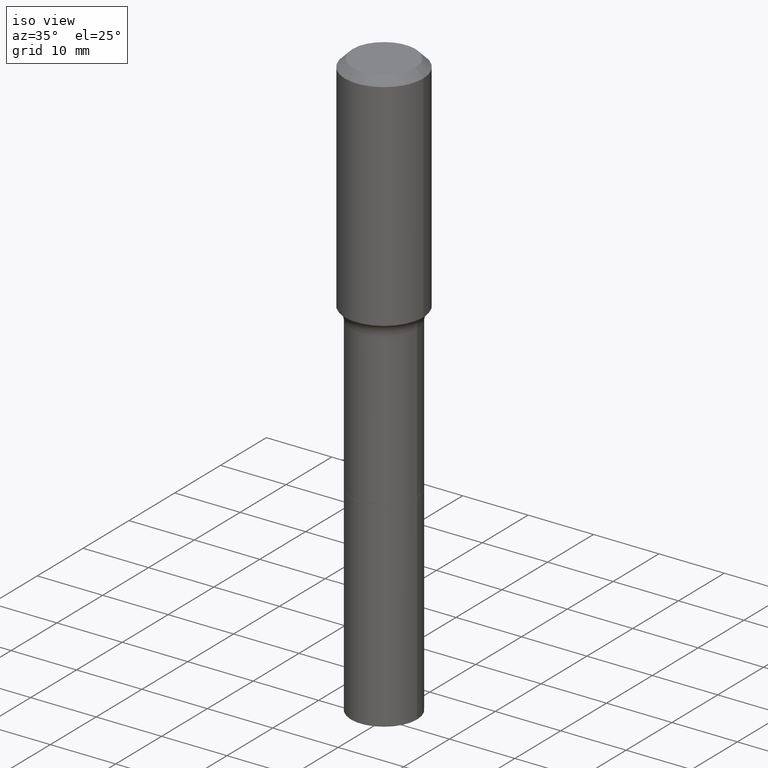
[diagram: clean part render]
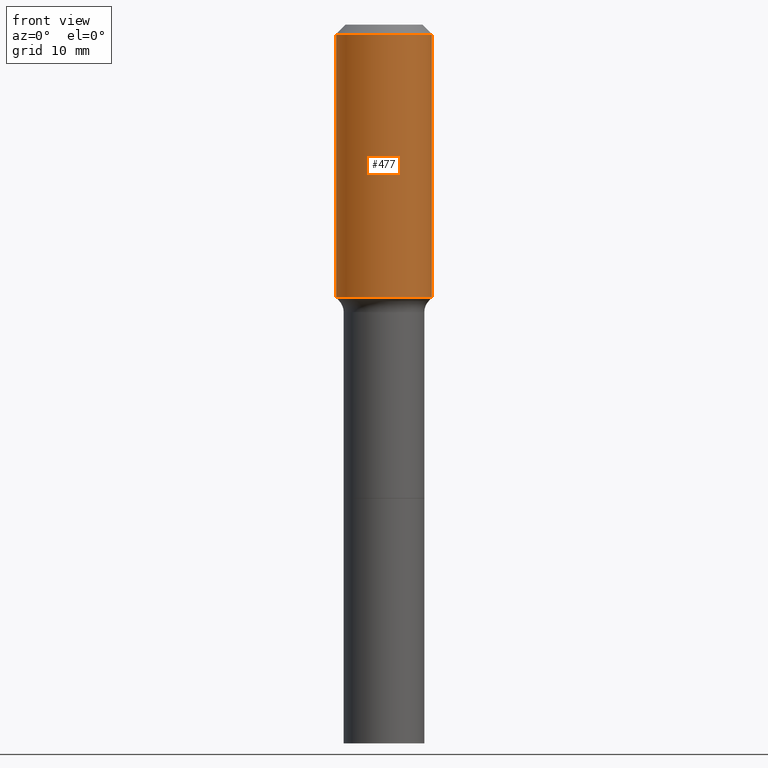
[diagram: tour spotlight — one face highlighted and labeled with its STEP entity id]
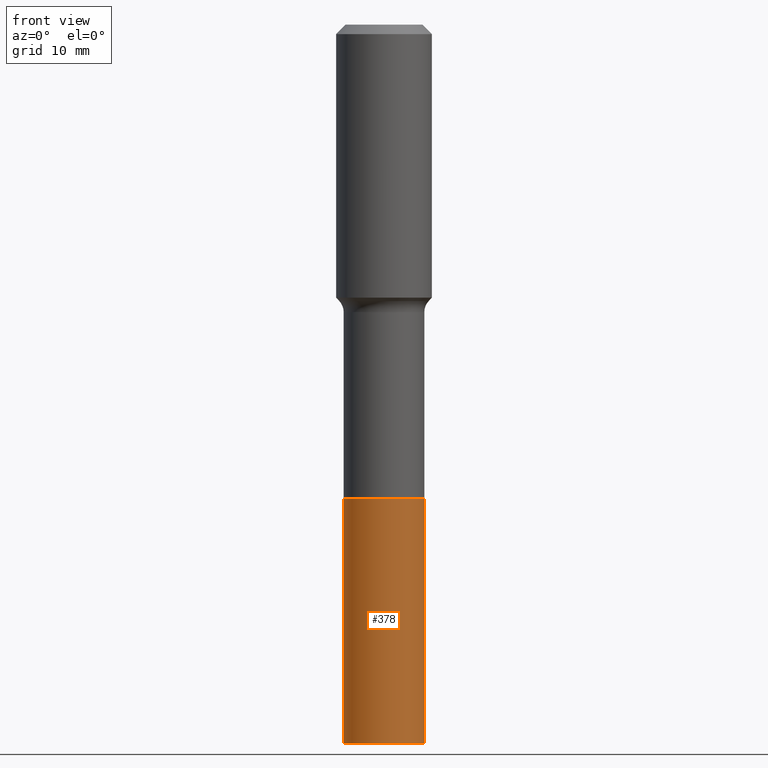
[diagram: tour spotlight — one face highlighted and labeled with its STEP entity id]
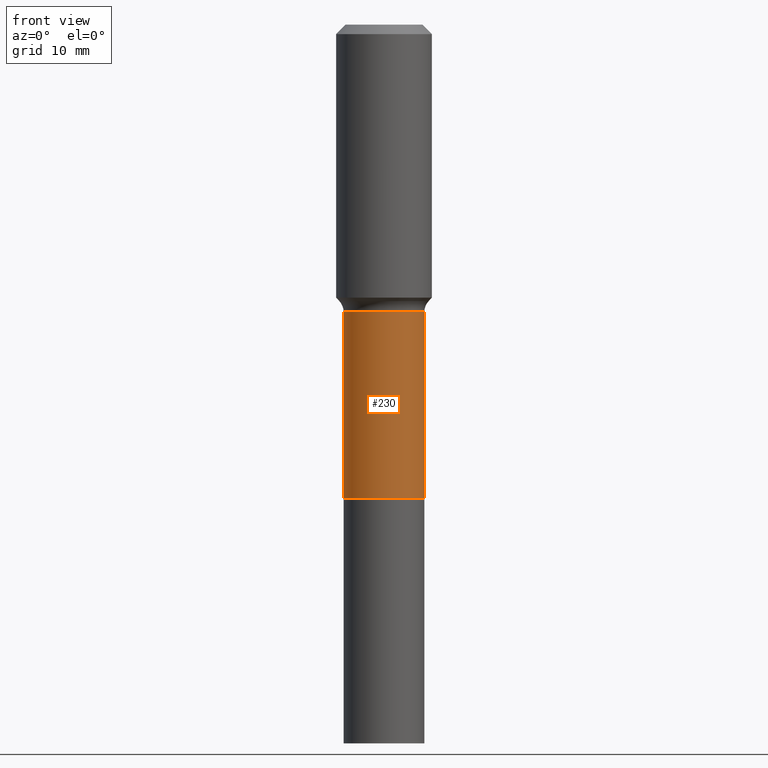
[diagram: tour spotlight — one face highlighted and labeled with its STEP entity id]
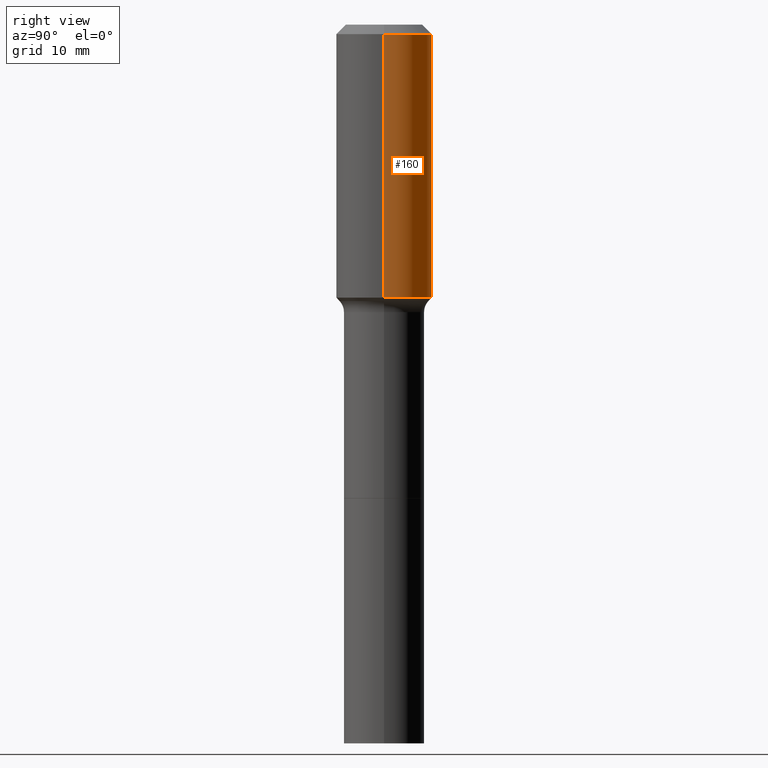
[diagram: tour spotlight — one face highlighted and labeled with its STEP entity id]
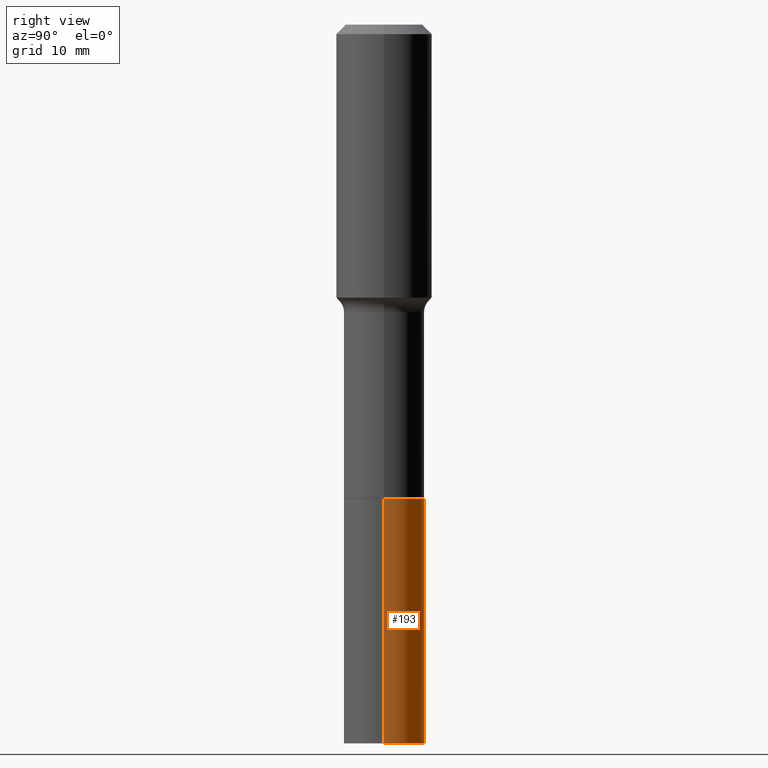
[diagram: tour spotlight — one face highlighted and labeled with its STEP entity id]
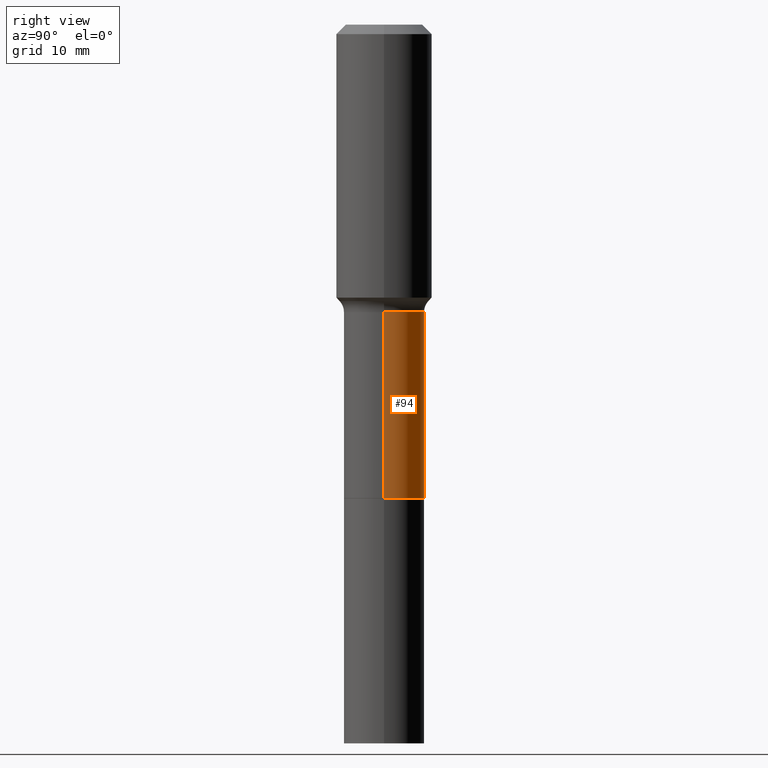
[diagram: tour spotlight — one face highlighted and labeled with its STEP entity id]
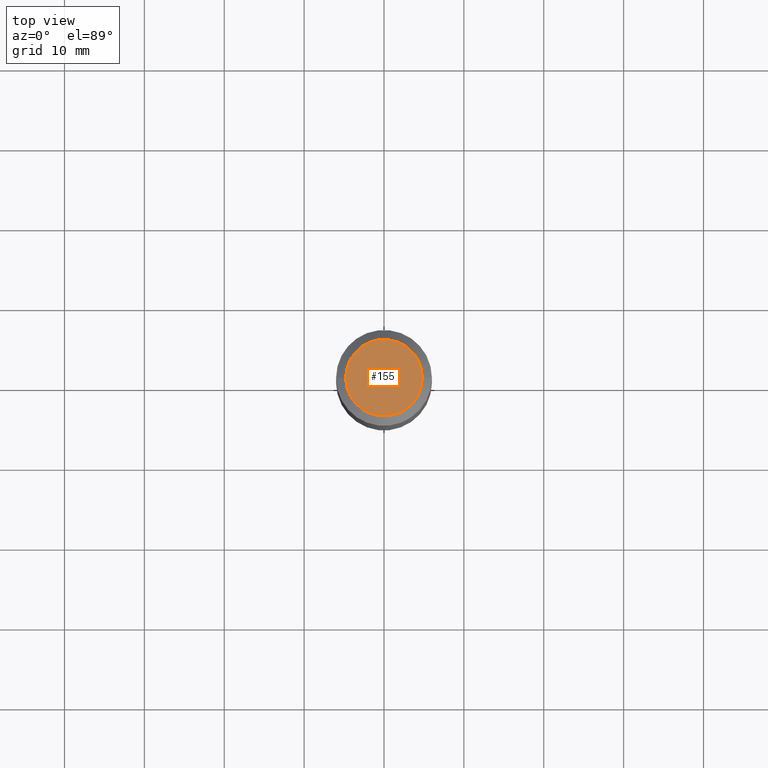
[diagram: tour spotlight — one face highlighted and labeled with its STEP entity id]
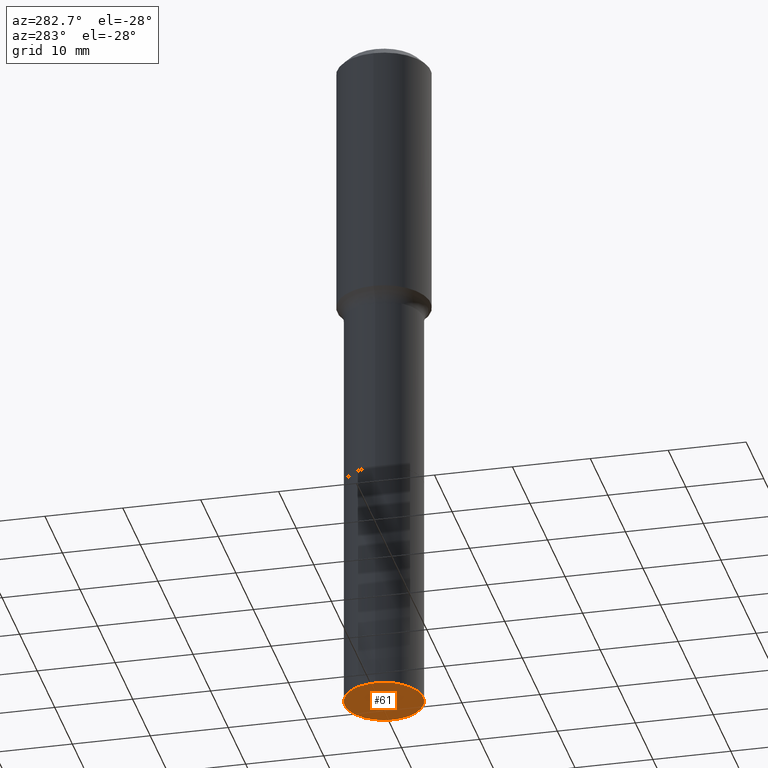
[diagram: tour spotlight — one face highlighted and labeled with its STEP entity id]
A machine part: a face-by-face anatomy tour. The part has 18 B-rep faces; the first image is the clean iso view, then the 8 largest visible faces are spotlighted one at a time (largest first), each with its STEP entity span.

Face 1 — front view, entity #477. In plain terms, the highlighted cylindrical surface (partial cylindrical patch) has radius 5.9995 mm, axis along (-0, 0, 1).
Definition (entity closure, byte-faithful):
#13 = DIRECTION ( 'NONE',  ( 1.000000000000000000, -6.982962677686266711E-15, 4.876176775795935793E-29 ) ) ;
#21 = CARTESIAN_POINT ( 'NONE',  ( -0.2362000000000000766, 1.678301941865357183E-15, -1.161852468318209177E-29 ) ) ;
#51 = CARTESIAN_POINT ( 'NONE',  ( 0.2361999999999999933, -1.814313362916447440E-15, -0.04724000000000028870 ) ) ;
#58 = ORIENTED_EDGE ( 'NONE', *, *, #456, .F. ) ;
#127 = CARTESIAN_POINT ( 'NONE',  ( 0.2362000000000000766, -1.649375784469496722E-15, 1.151752954443000368E-29 ) ) ;
#142 = CYLINDRICAL_SURFACE ( 'NONE', #463, 0.2362000000000000766 ) ;
#163 = DIRECTION ( 'NONE',  ( -2.445468806185136597E-29, 3.491481338843145583E-15, 1.000000000000000000 ) ) ;
#165 = EDGE_LOOP ( 'NONE', ( #58, #233, #517, #461 ) ) ;
#166 = VECTOR ( 'NONE', #332, 39.37007874015748143 ) ;
#170 = VERTEX_POINT ( 'NONE', #478 ) ;
#173 = EDGE_CURVE ( 'NONE', #445, #231, #380, .T. ) ;
#210 = CARTESIAN_POINT ( 'NONE',  ( 1.155239464041865682E-30, -1.649375784469512105E-16, -0.04724000000000028870 ) ) ;
#214 = DIRECTION ( 'NONE',  ( 1.000000000000000000, -6.982962677686266711E-15, 0.000000000000000000 ) ) ;
#231 = VERTEX_POINT ( 'NONE', #372 ) ;
#233 = ORIENTED_EDGE ( 'NONE', *, *, #173, .T. ) ;
#251 = CIRCLE ( 'NONE', #419, 0.2361999999999999933 ) ;
#263 = DIRECTION ( 'NONE',  ( -2.445468806185136877E-29, 3.491481338843145188E-15, 1.000000000000000000 ) ) ;
#279 = DIRECTION ( 'NONE',  ( -2.445468806185136597E-29, 3.491481338843145583E-15, 1.000000000000000000 ) ) ;
#285 = EDGE_CURVE ( 'NONE', #170, #323, #251, .T. ) ;
#290 = VECTOR ( 'NONE', #263, 39.37007874015748143 ) ;
#292 = CARTESIAN_POINT ( 'NONE',  ( 0.000000000000000000, 0.000000000000000000, 0.000000000000000000 ) ) ;
#323 = VERTEX_POINT ( 'NONE', #51 ) ;
#332 = DIRECTION ( 'NONE',  ( -2.445468806185136877E-29, 3.491481338843145188E-15, 1.000000000000000000 ) ) ;
#334 = FACE_OUTER_BOUND ( 'NONE', #165, .T. ) ;
#372 = CARTESIAN_POINT ( 'NONE',  ( 0.2362000000000001598, -6.347794390335182806E-15, -1.345680572195881330 ) ) ;
#377 = DIRECTION ( 'NONE',  ( -2.445468806185136597E-29, 3.491481338843145583E-15, 1.000000000000000000 ) ) ;
#380 = CIRCLE ( 'NONE', #389, 0.2362000000000001598 ) ;
#389 = AXIS2_PLACEMENT_3D ( 'NONE', #475, #279, #434 ) ;
#416 = EDGE_CURVE ( 'NONE', #231, #323, #485, .T. ) ;
#417 = LINE ( 'NONE', #21, #290 ) ;
#419 = AXIS2_PLACEMENT_3D ( 'NONE', #210, #163, #214 ) ;
#434 = DIRECTION ( 'NONE',  ( 1.000000000000000000, -6.982962677686268288E-15, 0.000000000000000000 ) ) ;
#445 = VERTEX_POINT ( 'NONE', #454 ) ;
#454 = CARTESIAN_POINT ( 'NONE',  ( -0.2362000000000001598, -3.020116664000327126E-15, -1.345680572195881330 ) ) ;
#456 = EDGE_CURVE ( 'NONE', #445, #170, #417, .T. ) ;
#461 = ORIENTED_EDGE ( 'NONE', *, *, #285, .F. ) ;
#463 = AXIS2_PLACEMENT_3D ( 'NONE', #292, #377, #13 ) ;
#475 = CARTESIAN_POINT ( 'NONE',  ( 3.290819862394392859E-29, -4.698418605865685492E-15, -1.345680572195881330 ) ) ;
#477 = ADVANCED_FACE ( 'NONE', ( #334 ), #142, .T. ) ;
#478 = CARTESIAN_POINT ( 'NONE',  ( -0.2361999999999999933, -7.533761502909610204E-16, -0.04724000000000028870 ) ) ;
#485 = LINE ( 'NONE', #127, #166 ) ;
#517 = ORIENTED_EDGE ( 'NONE', *, *, #416, .T. ) ;

Face 2 — front view, entity #378. In plain terms, the highlighted cylindrical surface (partial cylindrical patch) has radius 5.0495 mm, axis along (-0, 0, 1).
Definition (entity closure, byte-faithful):
#17 = CARTESIAN_POINT ( 'NONE',  ( -0.1988000000000000045, -6.737605930570474412E-15, -2.334299999999999820 ) ) ;
#20 = EDGE_CURVE ( 'NONE', #464, #327, #338, .T. ) ;
#29 = ORIENTED_EDGE ( 'NONE', *, *, #298, .F. ) ;
#32 = FACE_OUTER_BOUND ( 'NONE', #102, .T. ) ;
#73 = VERTEX_POINT ( 'NONE', #271 ) ;
#74 = DIRECTION ( 'NONE',  ( -2.445468806185136877E-29, 3.491481338843145188E-15, 1.000000000000000000 ) ) ;
#91 = DIRECTION ( 'NONE',  ( -2.445468806185136597E-29, 3.491481338843145583E-15, 1.000000000000000000 ) ) ;
#101 = CARTESIAN_POINT ( 'NONE',  ( 5.708457834277963987E-29, -8.150164889261554205E-15, -2.334299999999999820 ) ) ;
#102 = EDGE_LOOP ( 'NONE', ( #29, #283, #443, #476 ) ) ;
#134 = EDGE_CURVE ( 'NONE', #327, #73, #473, .T. ) ;
#143 = AXIS2_PLACEMENT_3D ( 'NONE', #400, #190, #352 ) ;
#145 = CARTESIAN_POINT ( 'NONE',  ( 8.665029620955794069E-29, -1.237136582792291707E-14, -3.543299999999999894 ) ) ;
#154 = CARTESIAN_POINT ( 'NONE',  ( 0.1988000000000000045, -9.538377869585582753E-15, -2.334299999999999820 ) ) ;
#184 = EDGE_CURVE ( 'NONE', #321, #73, #302, .T. ) ;
#187 = CYLINDRICAL_SURFACE ( 'NONE', #494, 0.1988000000000000045 ) ;
#190 = DIRECTION ( 'NONE',  ( -2.445468806185136597E-29, 3.491481338843145583E-15, 1.000000000000000000 ) ) ;
#209 = LINE ( 'NONE', #17, #266 ) ;
#228 = DIRECTION ( 'NONE',  ( -2.445468806185136597E-29, 3.491481338843145583E-15, 1.000000000000000000 ) ) ;
#232 = CARTESIAN_POINT ( 'NONE',  ( -0.1988000000000000045, -8.848206399901156635E-15, -3.543299999999999894 ) ) ;
#254 = DIRECTION ( 'NONE',  ( 1.000000000000000000, -6.982962677686261977E-15, 0.000000000000000000 ) ) ;
#266 = VECTOR ( 'NONE', #324, 39.37007874015748143 ) ;
#271 = CARTESIAN_POINT ( 'NONE',  ( 0.1988000000000000045, -9.538377869585582753E-15, -2.334299999999999820 ) ) ;
#283 = ORIENTED_EDGE ( 'NONE', *, *, #20, .T. ) ;
#287 = CARTESIAN_POINT ( 'NONE',  ( -0.1988000000000000045, -8.848206399901156635E-15, -2.334299999999999820 ) ) ;
#298 = EDGE_CURVE ( 'NONE', #464, #321, #209, .T. ) ;
#302 = CIRCLE ( 'NONE', #143, 0.1988000000000000045 ) ;
#312 = DIRECTION ( 'NONE',  ( 1.000000000000000000, -6.982962677686261977E-15, 0.000000000000000000 ) ) ;
#321 = VERTEX_POINT ( 'NONE', #287 ) ;
#324 = DIRECTION ( 'NONE',  ( -2.445468806185136877E-29, 3.491481338843145188E-15, 1.000000000000000000 ) ) ;
#325 = AXIS2_PLACEMENT_3D ( 'NONE', #145, #91, #254 ) ;
#327 = VERTEX_POINT ( 'NONE', #483 ) ;
#338 = CIRCLE ( 'NONE', #325, 0.1988000000000000045 ) ;
#350 = VECTOR ( 'NONE', #74, 39.37007874015748143 ) ;
#352 = DIRECTION ( 'NONE',  ( 1.000000000000000000, -6.982962677686261977E-15, 0.000000000000000000 ) ) ;
#378 = ADVANCED_FACE ( 'NONE', ( #32 ), #187, .T. ) ;
#400 = CARTESIAN_POINT ( 'NONE',  ( 5.708457834277963987E-29, -8.150164889261554205E-15, -2.334299999999999820 ) ) ;
#443 = ORIENTED_EDGE ( 'NONE', *, *, #134, .T. ) ;
#464 = VERTEX_POINT ( 'NONE', #232 ) ;
#473 = LINE ( 'NONE', #154, #350 ) ;
#476 = ORIENTED_EDGE ( 'NONE', *, *, #184, .F. ) ;
#483 = CARTESIAN_POINT ( 'NONE',  ( 0.1988000000000000045, -1.375957880824694562E-14, -3.543299999999999894 ) ) ;
#494 = AXIS2_PLACEMENT_3D ( 'NONE', #101, #228, #312 ) ;

Face 3 — front view, entity #230. In plain terms, the highlighted cylindrical surface (partial cylindrical patch) has radius 5.0495 mm, axis along (-0, 0, 1).
Definition (entity closure, byte-faithful):
#3 = CYLINDRICAL_SURFACE ( 'NONE', #182, 0.1988000000000000045 ) ;
#4 = EDGE_LOOP ( 'NONE', ( #105, #435, #349, #185 ) ) ;
#9 = EDGE_CURVE ( 'NONE', #410, #212, #164, .T. ) ;
#12 = CARTESIAN_POINT ( 'NONE',  ( 3.465962939006193759E-29, -4.948476501542390442E-15, -1.417300000000000004 ) ) ;
#57 = CARTESIAN_POINT ( 'NONE',  ( 0.1988000000000000045, -1.388212980324029928E-15, 9.693839430282320098E-30 ) ) ;
#70 = VECTOR ( 'NONE', #297, 39.37007874015748143 ) ;
#85 = DIRECTION ( 'NONE',  ( -2.445468806185136597E-29, 3.491481338843145583E-15, 1.000000000000000000 ) ) ;
#97 = FACE_OUTER_BOUND ( 'NONE', #4, .T. ) ;
#105 = ORIENTED_EDGE ( 'NONE', *, *, #255, .F. ) ;
#124 = LINE ( 'NONE', #404, #513 ) ;
#139 = CARTESIAN_POINT ( 'NONE',  ( 0.1987999999999999490, -6.336689481866418990E-15, -1.417300000000000004 ) ) ;
#164 = CIRCLE ( 'NONE', #317, 0.1988000000000000322 ) ;
#172 = LINE ( 'NONE', #57, #70 ) ;
#182 = AXIS2_PLACEMENT_3D ( 'NONE', #412, #364, #341 ) ;
#185 = ORIENTED_EDGE ( 'NONE', *, *, #248, .F. ) ;
#212 = VERTEX_POINT ( 'NONE', #291 ) ;
#230 = ADVANCED_FACE ( 'NONE', ( #97 ), #3, .T. ) ;
#248 = EDGE_CURVE ( 'NONE', #252, #265, #273, .T. ) ;
#250 = CARTESIAN_POINT ( 'NONE',  ( -0.1987999999999999490, -5.135888866376182173E-15, -1.417300000000000004 ) ) ;
#252 = VERTEX_POINT ( 'NONE', #250 ) ;
#255 = EDGE_CURVE ( 'NONE', #410, #252, #124, .T. ) ;
#265 = VERTEX_POINT ( 'NONE', #139 ) ;
#273 = CIRCLE ( 'NONE', #282, 0.1987999999999999490 ) ;
#282 = AXIS2_PLACEMENT_3D ( 'NONE', #12, #85, #496 ) ;
#289 = DIRECTION ( 'NONE',  ( 1.000000000000000000, -6.982962677686265922E-15, 0.000000000000000000 ) ) ;
#291 = CARTESIAN_POINT ( 'NONE',  ( 0.1988000000000000322, -9.536632128916162038E-15, -2.333799999999999653 ) ) ;
#293 = CARTESIAN_POINT ( 'NONE',  ( 5.707235099874871185E-29, -8.148419148592131913E-15, -2.333799999999999653 ) ) ;
#297 = DIRECTION ( 'NONE',  ( -2.445468806185136877E-29, 3.491481338843145188E-15, 1.000000000000000000 ) ) ;
#317 = AXIS2_PLACEMENT_3D ( 'NONE', #293, #498, #289 ) ;
#328 = CARTESIAN_POINT ( 'NONE',  ( -0.1988000000000000322, -5.135888866376181385E-15, -2.333799999999999653 ) ) ;
#341 = DIRECTION ( 'NONE',  ( 1.000000000000000000, -6.982962677686266711E-15, 4.876176775795935793E-29 ) ) ;
#349 = ORIENTED_EDGE ( 'NONE', *, *, #518, .T. ) ;
#364 = DIRECTION ( 'NONE',  ( -2.445468806185136597E-29, 3.491481338843145583E-15, 1.000000000000000000 ) ) ;
#404 = CARTESIAN_POINT ( 'NONE',  ( -0.1988000000000000045, 1.412558958691079201E-15, -9.778842959426753228E-30 ) ) ;
#410 = VERTEX_POINT ( 'NONE', #328 ) ;
#412 = CARTESIAN_POINT ( 'NONE',  ( 0.000000000000000000, 0.000000000000000000, 0.000000000000000000 ) ) ;
#435 = ORIENTED_EDGE ( 'NONE', *, *, #9, .T. ) ;
#452 = DIRECTION ( 'NONE',  ( -2.445468806185136877E-29, 3.491481338843145188E-15, 1.000000000000000000 ) ) ;
#496 = DIRECTION ( 'NONE',  ( 1.000000000000000000, -6.982962677686264344E-15, 0.000000000000000000 ) ) ;
#498 = DIRECTION ( 'NONE',  ( -2.445468806185136597E-29, 3.491481338843145583E-15, 1.000000000000000000 ) ) ;
#513 = VECTOR ( 'NONE', #452, 39.37007874015748143 ) ;
#518 = EDGE_CURVE ( 'NONE', #212, #265, #172, .T. ) ;

Face 4 — right view, entity #160. In plain terms, the highlighted cylindrical surface (partial cylindrical patch) has radius 5.9995 mm, axis along (-0, 0, 1).
Definition (entity closure, byte-faithful):
#16 = ORIENTED_EDGE ( 'NONE', *, *, #456, .T. ) ;
#18 = AXIS2_PLACEMENT_3D ( 'NONE', #361, #236, #204 ) ;
#21 = CARTESIAN_POINT ( 'NONE',  ( -0.2362000000000000766, 1.678301941865357183E-15, -1.161852468318209177E-29 ) ) ;
#38 = CYLINDRICAL_SURFACE ( 'NONE', #343, 0.2362000000000000766 ) ;
#51 = CARTESIAN_POINT ( 'NONE',  ( 0.2361999999999999933, -1.814313362916447440E-15, -0.04724000000000028870 ) ) ;
#77 = EDGE_CURVE ( 'NONE', #231, #445, #241, .T. ) ;
#78 = DIRECTION ( 'NONE',  ( -2.445468806185136597E-29, 3.491481338843145583E-15, 1.000000000000000000 ) ) ;
#104 = CIRCLE ( 'NONE', #135, 0.2361999999999999933 ) ;
#107 = EDGE_CURVE ( 'NONE', #323, #170, #104, .T. ) ;
#117 = DIRECTION ( 'NONE',  ( 1.000000000000000000, -6.982962677686266711E-15, 4.876176775795935793E-29 ) ) ;
#127 = CARTESIAN_POINT ( 'NONE',  ( 0.2362000000000000766, -1.649375784469496722E-15, 1.151752954443000368E-29 ) ) ;
#135 = AXIS2_PLACEMENT_3D ( 'NONE', #510, #509, #275 ) ;
#147 = EDGE_LOOP ( 'NONE', ( #162, #16, #217, #418 ) ) ;
#160 = ADVANCED_FACE ( 'NONE', ( #392 ), #38, .T. ) ;
#162 = ORIENTED_EDGE ( 'NONE', *, *, #77, .T. ) ;
#166 = VECTOR ( 'NONE', #332, 39.37007874015748143 ) ;
#170 = VERTEX_POINT ( 'NONE', #478 ) ;
#204 = DIRECTION ( 'NONE',  ( 1.000000000000000000, -6.982962677686268288E-15, 0.000000000000000000 ) ) ;
#217 = ORIENTED_EDGE ( 'NONE', *, *, #107, .F. ) ;
#231 = VERTEX_POINT ( 'NONE', #372 ) ;
#236 = DIRECTION ( 'NONE',  ( -2.445468806185136597E-29, 3.491481338843145583E-15, 1.000000000000000000 ) ) ;
#241 = CIRCLE ( 'NONE', #18, 0.2362000000000001598 ) ;
#263 = DIRECTION ( 'NONE',  ( -2.445468806185136877E-29, 3.491481338843145188E-15, 1.000000000000000000 ) ) ;
#275 = DIRECTION ( 'NONE',  ( 1.000000000000000000, -6.982962677686266711E-15, 0.000000000000000000 ) ) ;
#290 = VECTOR ( 'NONE', #263, 39.37007874015748143 ) ;
#322 = CARTESIAN_POINT ( 'NONE',  ( 0.000000000000000000, 0.000000000000000000, 0.000000000000000000 ) ) ;
#323 = VERTEX_POINT ( 'NONE', #51 ) ;
#332 = DIRECTION ( 'NONE',  ( -2.445468806185136877E-29, 3.491481338843145188E-15, 1.000000000000000000 ) ) ;
#343 = AXIS2_PLACEMENT_3D ( 'NONE', #322, #78, #117 ) ;
#361 = CARTESIAN_POINT ( 'NONE',  ( 3.290819862394392859E-29, -4.698418605865685492E-15, -1.345680572195881330 ) ) ;
#372 = CARTESIAN_POINT ( 'NONE',  ( 0.2362000000000001598, -6.347794390335182806E-15, -1.345680572195881330 ) ) ;
#392 = FACE_OUTER_BOUND ( 'NONE', #147, .T. ) ;
#416 = EDGE_CURVE ( 'NONE', #231, #323, #485, .T. ) ;
#417 = LINE ( 'NONE', #21, #290 ) ;
#418 = ORIENTED_EDGE ( 'NONE', *, *, #416, .F. ) ;
#445 = VERTEX_POINT ( 'NONE', #454 ) ;
#454 = CARTESIAN_POINT ( 'NONE',  ( -0.2362000000000001598, -3.020116664000327126E-15, -1.345680572195881330 ) ) ;
#456 = EDGE_CURVE ( 'NONE', #445, #170, #417, .T. ) ;
#478 = CARTESIAN_POINT ( 'NONE',  ( -0.2361999999999999933, -7.533761502909610204E-16, -0.04724000000000028870 ) ) ;
#485 = LINE ( 'NONE', #127, #166 ) ;
#509 = DIRECTION ( 'NONE',  ( -2.445468806185136597E-29, 3.491481338843145583E-15, 1.000000000000000000 ) ) ;
#510 = CARTESIAN_POINT ( 'NONE',  ( 1.155239464041865682E-30, -1.649375784469512105E-16, -0.04724000000000028870 ) ) ;

Face 5 — right view, entity #193. In plain terms, the highlighted cylindrical surface (partial cylindrical patch) has radius 5.0495 mm, axis along (-0, 0, 1).
Definition (entity closure, byte-faithful):
#17 = CARTESIAN_POINT ( 'NONE',  ( -0.1988000000000000045, -6.737605930570474412E-15, -2.334299999999999820 ) ) ;
#36 = CIRCLE ( 'NONE', #221, 0.1988000000000000045 ) ;
#43 = EDGE_CURVE ( 'NONE', #73, #321, #36, .T. ) ;
#73 = VERTEX_POINT ( 'NONE', #271 ) ;
#74 = DIRECTION ( 'NONE',  ( -2.445468806185136877E-29, 3.491481338843145188E-15, 1.000000000000000000 ) ) ;
#93 = CYLINDRICAL_SURFACE ( 'NONE', #112, 0.1988000000000000045 ) ;
#95 = CARTESIAN_POINT ( 'NONE',  ( 8.665029620955794069E-29, -1.237136582792291707E-14, -3.543299999999999894 ) ) ;
#112 = AXIS2_PLACEMENT_3D ( 'NONE', #295, #366, #402 ) ;
#125 = ORIENTED_EDGE ( 'NONE', *, *, #503, .T. ) ;
#129 = DIRECTION ( 'NONE',  ( -2.445468806185136597E-29, 3.491481338843145583E-15, 1.000000000000000000 ) ) ;
#134 = EDGE_CURVE ( 'NONE', #327, #73, #473, .T. ) ;
#154 = CARTESIAN_POINT ( 'NONE',  ( 0.1988000000000000045, -9.538377869585582753E-15, -2.334299999999999820 ) ) ;
#156 = DIRECTION ( 'NONE',  ( -2.445468806185136597E-29, 3.491481338843145583E-15, 1.000000000000000000 ) ) ;
#178 = DIRECTION ( 'NONE',  ( 1.000000000000000000, -6.982962677686261977E-15, 0.000000000000000000 ) ) ;
#188 = ORIENTED_EDGE ( 'NONE', *, *, #43, .F. ) ;
#192 = DIRECTION ( 'NONE',  ( 1.000000000000000000, -6.982962677686261977E-15, 0.000000000000000000 ) ) ;
#193 = ADVANCED_FACE ( 'NONE', ( #492 ), #93, .T. ) ;
#209 = LINE ( 'NONE', #17, #266 ) ;
#221 = AXIS2_PLACEMENT_3D ( 'NONE', #470, #156, #192 ) ;
#232 = CARTESIAN_POINT ( 'NONE',  ( -0.1988000000000000045, -8.848206399901156635E-15, -3.543299999999999894 ) ) ;
#266 = VECTOR ( 'NONE', #324, 39.37007874015748143 ) ;
#271 = CARTESIAN_POINT ( 'NONE',  ( 0.1988000000000000045, -9.538377869585582753E-15, -2.334299999999999820 ) ) ;
#287 = CARTESIAN_POINT ( 'NONE',  ( -0.1988000000000000045, -8.848206399901156635E-15, -2.334299999999999820 ) ) ;
#295 = CARTESIAN_POINT ( 'NONE',  ( 5.708457834277963987E-29, -8.150164889261554205E-15, -2.334299999999999820 ) ) ;
#298 = EDGE_CURVE ( 'NONE', #464, #321, #209, .T. ) ;
#321 = VERTEX_POINT ( 'NONE', #287 ) ;
#324 = DIRECTION ( 'NONE',  ( -2.445468806185136877E-29, 3.491481338843145188E-15, 1.000000000000000000 ) ) ;
#327 = VERTEX_POINT ( 'NONE', #483 ) ;
#344 = AXIS2_PLACEMENT_3D ( 'NONE', #95, #129, #178 ) ;
#350 = VECTOR ( 'NONE', #74, 39.37007874015748143 ) ;
#366 = DIRECTION ( 'NONE',  ( -2.445468806185136597E-29, 3.491481338843145583E-15, 1.000000000000000000 ) ) ;
#395 = ORIENTED_EDGE ( 'NONE', *, *, #134, .F. ) ;
#397 = CIRCLE ( 'NONE', #344, 0.1988000000000000045 ) ;
#402 = DIRECTION ( 'NONE',  ( 1.000000000000000000, -6.982962677686261977E-15, 0.000000000000000000 ) ) ;
#424 = ORIENTED_EDGE ( 'NONE', *, *, #298, .T. ) ;
#464 = VERTEX_POINT ( 'NONE', #232 ) ;
#470 = CARTESIAN_POINT ( 'NONE',  ( 5.708457834277963987E-29, -8.150164889261554205E-15, -2.334299999999999820 ) ) ;
#473 = LINE ( 'NONE', #154, #350 ) ;
#483 = CARTESIAN_POINT ( 'NONE',  ( 0.1988000000000000045, -1.375957880824694562E-14, -3.543299999999999894 ) ) ;
#492 = FACE_OUTER_BOUND ( 'NONE', #504, .T. ) ;
#503 = EDGE_CURVE ( 'NONE', #327, #464, #397, .T. ) ;
#504 = EDGE_LOOP ( 'NONE', ( #125, #424, #188, #395 ) ) ;

Face 6 — right view, entity #94. In plain terms, the highlighted cylindrical surface (partial cylindrical patch) has radius 5.0495 mm, axis along (-0, 0, 1).
Definition (entity closure, byte-faithful):
#6 = AXIS2_PLACEMENT_3D ( 'NONE', #491, #92, #411 ) ;
#40 = CYLINDRICAL_SURFACE ( 'NONE', #189, 0.1988000000000000045 ) ;
#57 = CARTESIAN_POINT ( 'NONE',  ( 0.1988000000000000045, -1.388212980324029928E-15, 9.693839430282320098E-30 ) ) ;
#70 = VECTOR ( 'NONE', #297, 39.37007874015748143 ) ;
#79 = CARTESIAN_POINT ( 'NONE',  ( 3.465962939006193759E-29, -4.948476501542390442E-15, -1.417300000000000004 ) ) ;
#92 = DIRECTION ( 'NONE',  ( -2.445468806185136597E-29, 3.491481338843145583E-15, 1.000000000000000000 ) ) ;
#94 = ADVANCED_FACE ( 'NONE', ( #467 ), #40, .T. ) ;
#124 = LINE ( 'NONE', #404, #513 ) ;
#138 = ORIENTED_EDGE ( 'NONE', *, *, #180, .F. ) ;
#139 = CARTESIAN_POINT ( 'NONE',  ( 0.1987999999999999490, -6.336689481866418990E-15, -1.417300000000000004 ) ) ;
#172 = LINE ( 'NONE', #57, #70 ) ;
#180 = EDGE_CURVE ( 'NONE', #265, #252, #234, .T. ) ;
#189 = AXIS2_PLACEMENT_3D ( 'NONE', #515, #431, #427 ) ;
#212 = VERTEX_POINT ( 'NONE', #291 ) ;
#226 = AXIS2_PLACEMENT_3D ( 'NONE', #79, #281, #239 ) ;
#234 = CIRCLE ( 'NONE', #226, 0.1987999999999999490 ) ;
#239 = DIRECTION ( 'NONE',  ( 1.000000000000000000, -6.982962677686264344E-15, 0.000000000000000000 ) ) ;
#250 = CARTESIAN_POINT ( 'NONE',  ( -0.1987999999999999490, -5.135888866376182173E-15, -1.417300000000000004 ) ) ;
#252 = VERTEX_POINT ( 'NONE', #250 ) ;
#255 = EDGE_CURVE ( 'NONE', #410, #252, #124, .T. ) ;
#265 = VERTEX_POINT ( 'NONE', #139 ) ;
#281 = DIRECTION ( 'NONE',  ( -2.445468806185136597E-29, 3.491481338843145583E-15, 1.000000000000000000 ) ) ;
#291 = CARTESIAN_POINT ( 'NONE',  ( 0.1988000000000000322, -9.536632128916162038E-15, -2.333799999999999653 ) ) ;
#297 = DIRECTION ( 'NONE',  ( -2.445468806185136877E-29, 3.491481338843145188E-15, 1.000000000000000000 ) ) ;
#307 = ORIENTED_EDGE ( 'NONE', *, *, #518, .F. ) ;
#328 = CARTESIAN_POINT ( 'NONE',  ( -0.1988000000000000322, -5.135888866376181385E-15, -2.333799999999999653 ) ) ;
#347 = EDGE_LOOP ( 'NONE', ( #490, #365, #138, #307 ) ) ;
#365 = ORIENTED_EDGE ( 'NONE', *, *, #255, .T. ) ;
#381 = CIRCLE ( 'NONE', #6, 0.1988000000000000322 ) ;
#404 = CARTESIAN_POINT ( 'NONE',  ( -0.1988000000000000045, 1.412558958691079201E-15, -9.778842959426753228E-30 ) ) ;
#410 = VERTEX_POINT ( 'NONE', #328 ) ;
#411 = DIRECTION ( 'NONE',  ( 1.000000000000000000, -6.982962677686265922E-15, 0.000000000000000000 ) ) ;
#427 = DIRECTION ( 'NONE',  ( 1.000000000000000000, -6.982962677686266711E-15, 4.876176775795935793E-29 ) ) ;
#431 = DIRECTION ( 'NONE',  ( -2.445468806185136597E-29, 3.491481338843145583E-15, 1.000000000000000000 ) ) ;
#439 = EDGE_CURVE ( 'NONE', #212, #410, #381, .T. ) ;
#452 = DIRECTION ( 'NONE',  ( -2.445468806185136877E-29, 3.491481338843145188E-15, 1.000000000000000000 ) ) ;
#467 = FACE_OUTER_BOUND ( 'NONE', #347, .T. ) ;
#490 = ORIENTED_EDGE ( 'NONE', *, *, #439, .T. ) ;
#491 = CARTESIAN_POINT ( 'NONE',  ( 5.707235099874871185E-29, -8.148419148592131913E-15, -2.333799999999999653 ) ) ;
#513 = VECTOR ( 'NONE', #452, 39.37007874015748143 ) ;
#515 = CARTESIAN_POINT ( 'NONE',  ( 0.000000000000000000, 0.000000000000000000, 0.000000000000000000 ) ) ;
#518 = EDGE_CURVE ( 'NONE', #212, #265, #172, .T. ) ;

Face 7 — top view, entity #155. In plain terms, the highlighted planar face has unit normal (0, -0, -1).
Definition (entity closure, byte-faithful):
#45 = VERTEX_POINT ( 'NONE', #111 ) ;
#55 = EDGE_LOOP ( 'NONE', ( #362, #382 ) ) ;
#111 = CARTESIAN_POINT ( 'NONE',  ( 0.1889600000000000168, -1.540873453589747738E-15, 3.855188123725863225E-18 ) ) ;
#131 = CARTESIAN_POINT ( 'NONE',  ( -0.1889600000000000168, 1.401969416799070942E-15, 3.855188123706346622E-18 ) ) ;
#152 = FACE_OUTER_BOUND ( 'NONE', #55, .T. ) ;
#155 = ADVANCED_FACE ( 'NONE', ( #152 ), #511, .F. ) ;
#157 = CIRCLE ( 'NONE', #211, 0.1889600000000000168 ) ;
#168 = DIRECTION ( 'NONE',  ( 1.000000000000000000, -6.982962677686266711E-15, 4.876185090822587894E-29 ) ) ;
#196 = DIRECTION ( 'NONE',  ( 2.438088387897960049E-29, -3.491481338843145188E-15, -1.000000000000000000 ) ) ;
#208 = EDGE_CURVE ( 'NONE', #45, #310, #157, .T. ) ;
#211 = AXIS2_PLACEMENT_3D ( 'NONE', #489, #455, #168 ) ;
#244 = DIRECTION ( 'NONE',  ( -1.000000000000000000, 6.982962677686265922E-15, -4.876176775795935793E-29 ) ) ;
#310 = VERTEX_POINT ( 'NONE', #131 ) ;
#320 = CARTESIAN_POINT ( 'NONE',  ( -4.713871149261273121E-47, 6.730158695841826722E-33, 1.927594061857931128E-18 ) ) ;
#345 = DIRECTION ( 'NONE',  ( -2.445468806185136597E-29, 3.491481338843145583E-15, 1.000000000000000000 ) ) ;
#362 = ORIENTED_EDGE ( 'NONE', *, *, #373, .T. ) ;
#373 = EDGE_CURVE ( 'NONE', #310, #45, #481, .T. ) ;
#382 = ORIENTED_EDGE ( 'NONE', *, *, #208, .T. ) ;
#420 = AXIS2_PLACEMENT_3D ( 'NONE', #500, #345, #508 ) ;
#455 = DIRECTION ( 'NONE',  ( -2.445468806185136597E-29, 3.491481338843145583E-15, 1.000000000000000000 ) ) ;
#480 = AXIS2_PLACEMENT_3D ( 'NONE', #320, #196, #244 ) ;
#481 = CIRCLE ( 'NONE', #420, 0.1889600000000000168 ) ;
#489 = CARTESIAN_POINT ( 'NONE',  ( -9.427742298522546243E-47, 1.346031739168365344E-32, 3.855188123715862256E-18 ) ) ;
#500 = CARTESIAN_POINT ( 'NONE',  ( -9.427742298522546243E-47, 1.346031739168365344E-32, 3.855188123715862256E-18 ) ) ;
#508 = DIRECTION ( 'NONE',  ( 1.000000000000000000, -6.982962677686266711E-15, 4.876185090822587894E-29 ) ) ;
#511 = PLANE ( 'NONE',  #480 ) ;

Face 8 — auxiliary view, entity #61. In plain terms, the highlighted planar face has unit normal (0, -0, -1).
Definition (entity closure, byte-faithful):
#1 = CARTESIAN_POINT ( 'NONE',  ( 8.665029620955794069E-29, -1.237136582792291707E-14, -3.543299999999999894 ) ) ;
#20 = EDGE_CURVE ( 'NONE', #464, #327, #338, .T. ) ;
#24 = AXIS2_PLACEMENT_3D ( 'NONE', #1, #394, #161 ) ;
#61 = ADVANCED_FACE ( 'NONE', ( #81 ), #357, .T. ) ;
#81 = FACE_OUTER_BOUND ( 'NONE', #277, .T. ) ;
#84 = ORIENTED_EDGE ( 'NONE', *, *, #20, .F. ) ;
#91 = DIRECTION ( 'NONE',  ( -2.445468806185136597E-29, 3.491481338843145583E-15, 1.000000000000000000 ) ) ;
#95 = CARTESIAN_POINT ( 'NONE',  ( 8.665029620955794069E-29, -1.237136582792291707E-14, -3.543299999999999894 ) ) ;
#129 = DIRECTION ( 'NONE',  ( -2.445468806185136597E-29, 3.491481338843145583E-15, 1.000000000000000000 ) ) ;
#145 = CARTESIAN_POINT ( 'NONE',  ( 8.665029620955794069E-29, -1.237136582792291707E-14, -3.543299999999999894 ) ) ;
#161 = DIRECTION ( 'NONE',  ( -1.000000000000000000, 6.982962677686265922E-15, -4.876176775795935793E-29 ) ) ;
#178 = DIRECTION ( 'NONE',  ( 1.000000000000000000, -6.982962677686261977E-15, 0.000000000000000000 ) ) ;
#232 = CARTESIAN_POINT ( 'NONE',  ( -0.1988000000000000045, -8.848206399901156635E-15, -3.543299999999999894 ) ) ;
#254 = DIRECTION ( 'NONE',  ( 1.000000000000000000, -6.982962677686261977E-15, 0.000000000000000000 ) ) ;
#268 = ORIENTED_EDGE ( 'NONE', *, *, #503, .F. ) ;
#277 = EDGE_LOOP ( 'NONE', ( #268, #84 ) ) ;
#325 = AXIS2_PLACEMENT_3D ( 'NONE', #145, #91, #254 ) ;
#327 = VERTEX_POINT ( 'NONE', #483 ) ;
#338 = CIRCLE ( 'NONE', #325, 0.1988000000000000045 ) ;
#344 = AXIS2_PLACEMENT_3D ( 'NONE', #95, #129, #178 ) ;
#357 = PLANE ( 'NONE',  #24 ) ;
#394 = DIRECTION ( 'NONE',  ( 2.438088387897960049E-29, -3.491481338843145188E-15, -1.000000000000000000 ) ) ;
#397 = CIRCLE ( 'NONE', #344, 0.1988000000000000045 ) ;
#464 = VERTEX_POINT ( 'NONE', #232 ) ;
#483 = CARTESIAN_POINT ( 'NONE',  ( 0.1988000000000000045, -1.375957880824694562E-14, -3.543299999999999894 ) ) ;
#503 = EDGE_CURVE ( 'NONE', #327, #464, #397, .T. ) ;